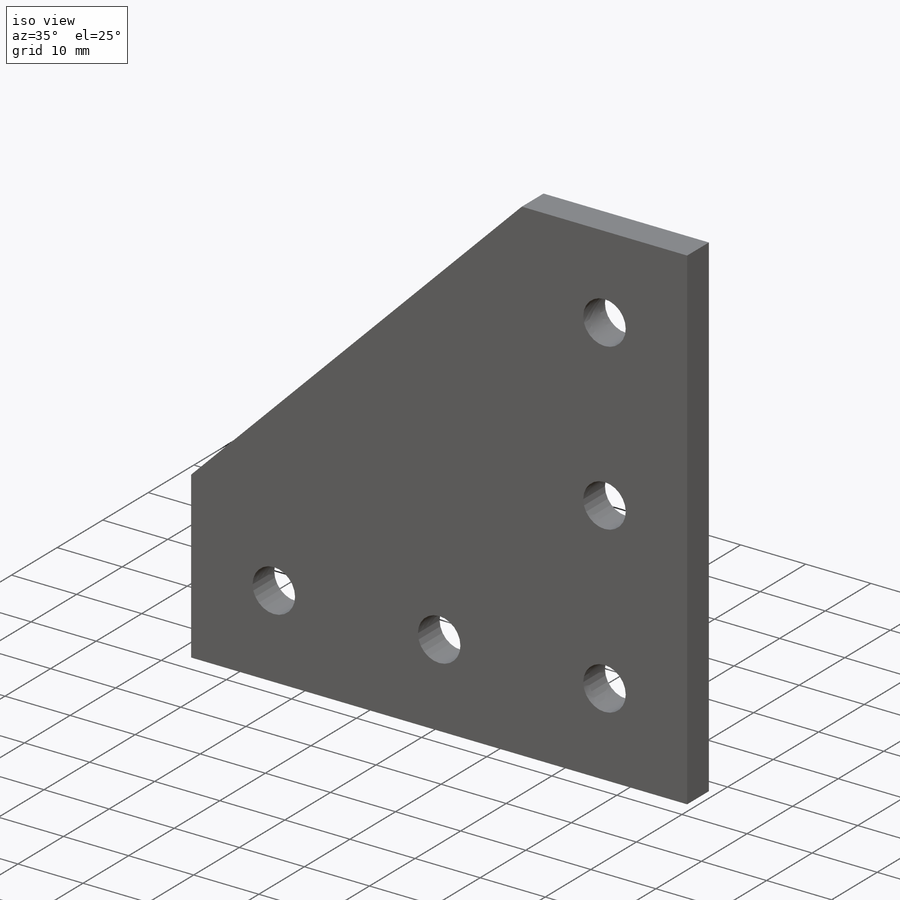
[diagram: iso view]
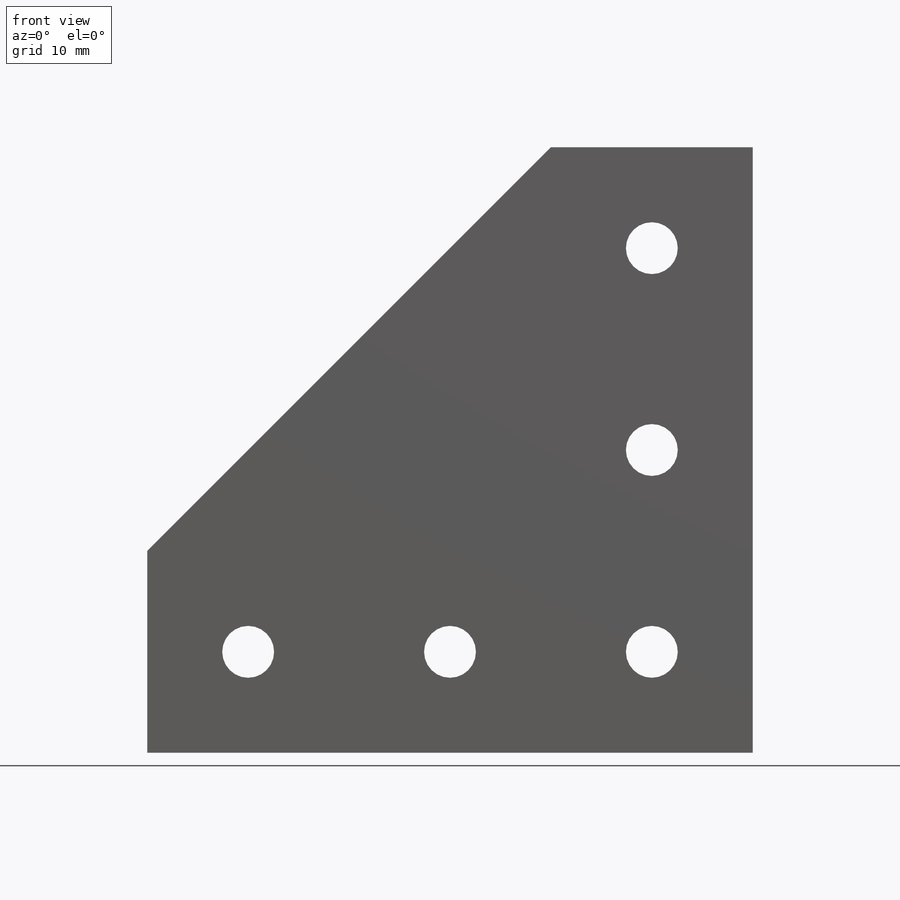
[diagram: front view]
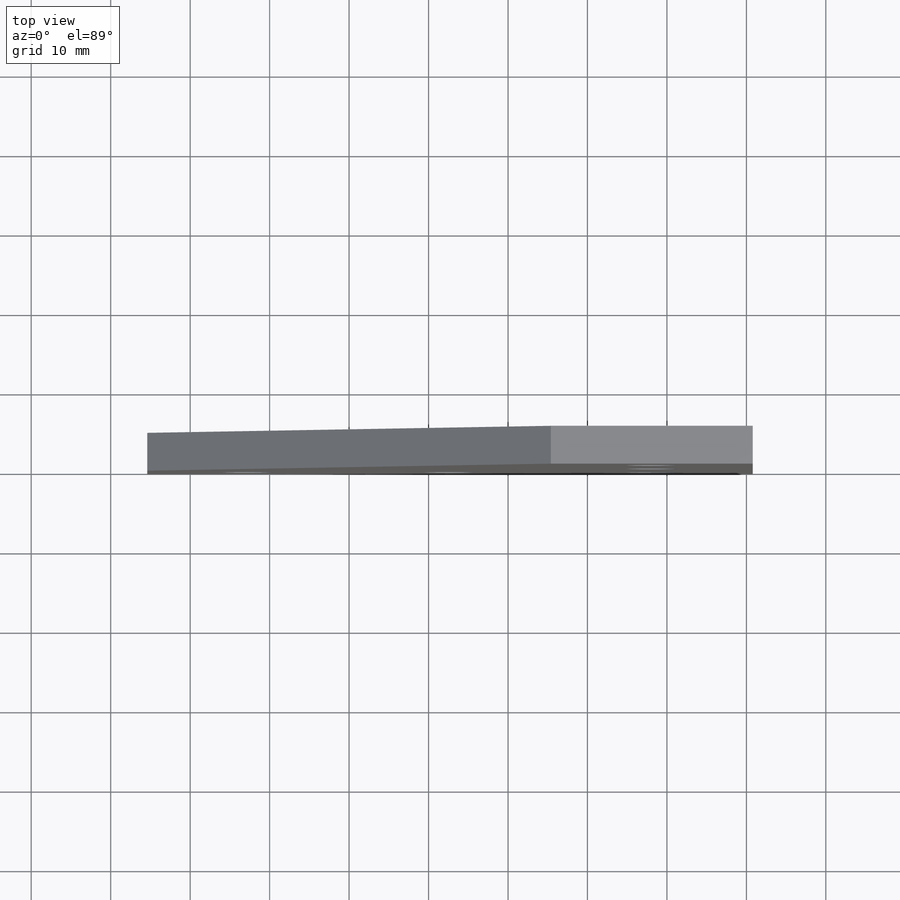
[diagram: top view]
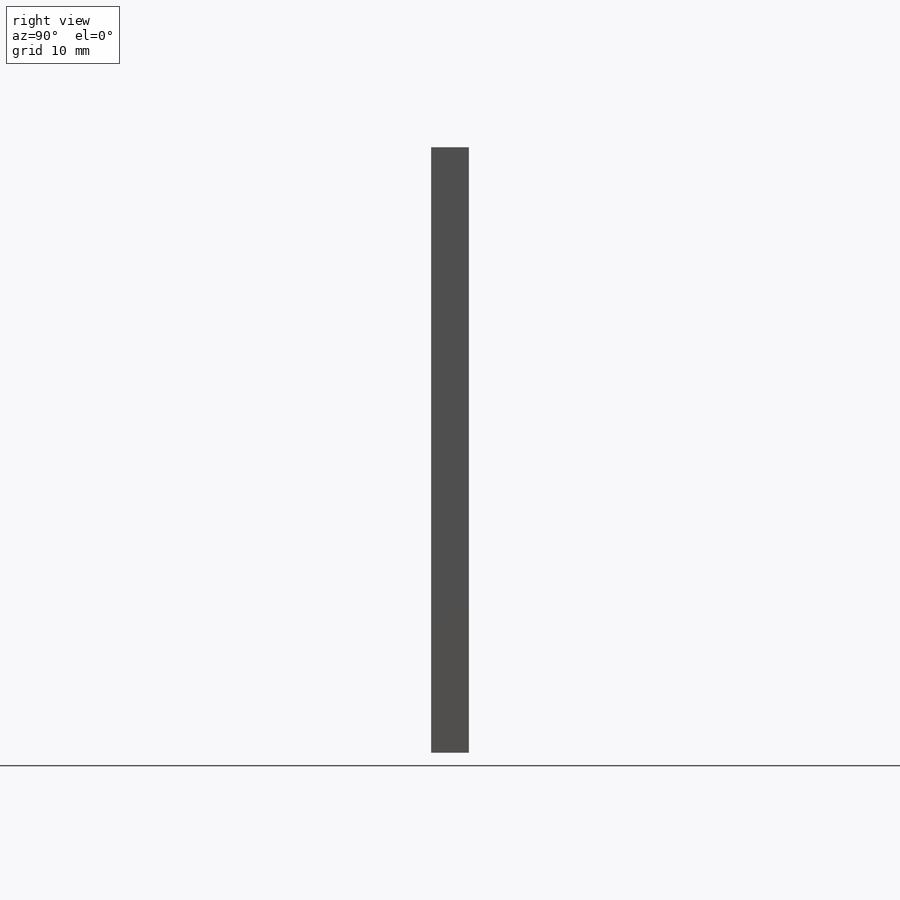
[diagram: right view]
SOLIDWORKS PART (.sldprt)
format: sldprt  version: not decoded by parser v0  size: 267,776 bytes
history: native  units: mm
features: sketch x5, cut_extrude x4, material x1, extrude x1, mirror x1 (+13 scaffold rows collapsed)
feature tree (25):
  scaffold x13  (default folders/planes/origin — collapsed)
  material  "Material <not specified>"
  sketch  "Sketch1"  dims[height=76.2mm width=76.2mm flat=25.4mm D1=25.4mm]
  extrude  "Extrude1"  Depth=4.7625mm thickness=4.7625mm
  mirror  "Mirror1"
  sketch  "Sketch2"  dims[c1.hole=6.5278mm c1.D1=6.5278mm c1.D2=6.5278mm c1.D3=6.5278mm c1.D4=6.5278mm c1.center to center=25.4mm c2.D2=25.4mm c2.D3=25.4mm c2.D4=25.4mm]
  cut_extrude  "single 90"  [1 undecoded]
  sketch  "Sketch3"  dims[c1.D1=6.5278mm c1.D3=9.0932mm c1.D4=9.0932mm c1.D5=9.0932mm c1.center to center=25.4mm c2.D3=25.4mm c2.D4=25.4mm c2.D5=25.4mm]
  cut_extrude  "single tee"  [1 undecoded]
  sketch  "Sketch4"  dims[c1.D1=~11.063454mm c1.D3=~9.693279mm c1.D4=~9.693279mm c1.D5=6.5278mm c1.center to center=25.4mm c1.D2=25.4mm c2.D3=25.4mm c2.D4=25.4mm]
  cut_extrude  "double 90"  [1 undecoded]
  sketch  "Sketch5"  dims[c1.D2=~12.670037mm c1.D3=~12.670037mm c1.center to center=25.4mm c2.D2=25.4mm c2.D3=25.4mm]
  cut_extrude  "double tee"  [1 undecoded]
decode coverage: 6 of 11 modeling features carry decoded parameters
note: ~ marks probable driven/reference dimensions
note: 4 parameter values undecoded
summary: no parameter record found for 4 features
note: suppression state not decoded; provenance and decode notes live in map.json
